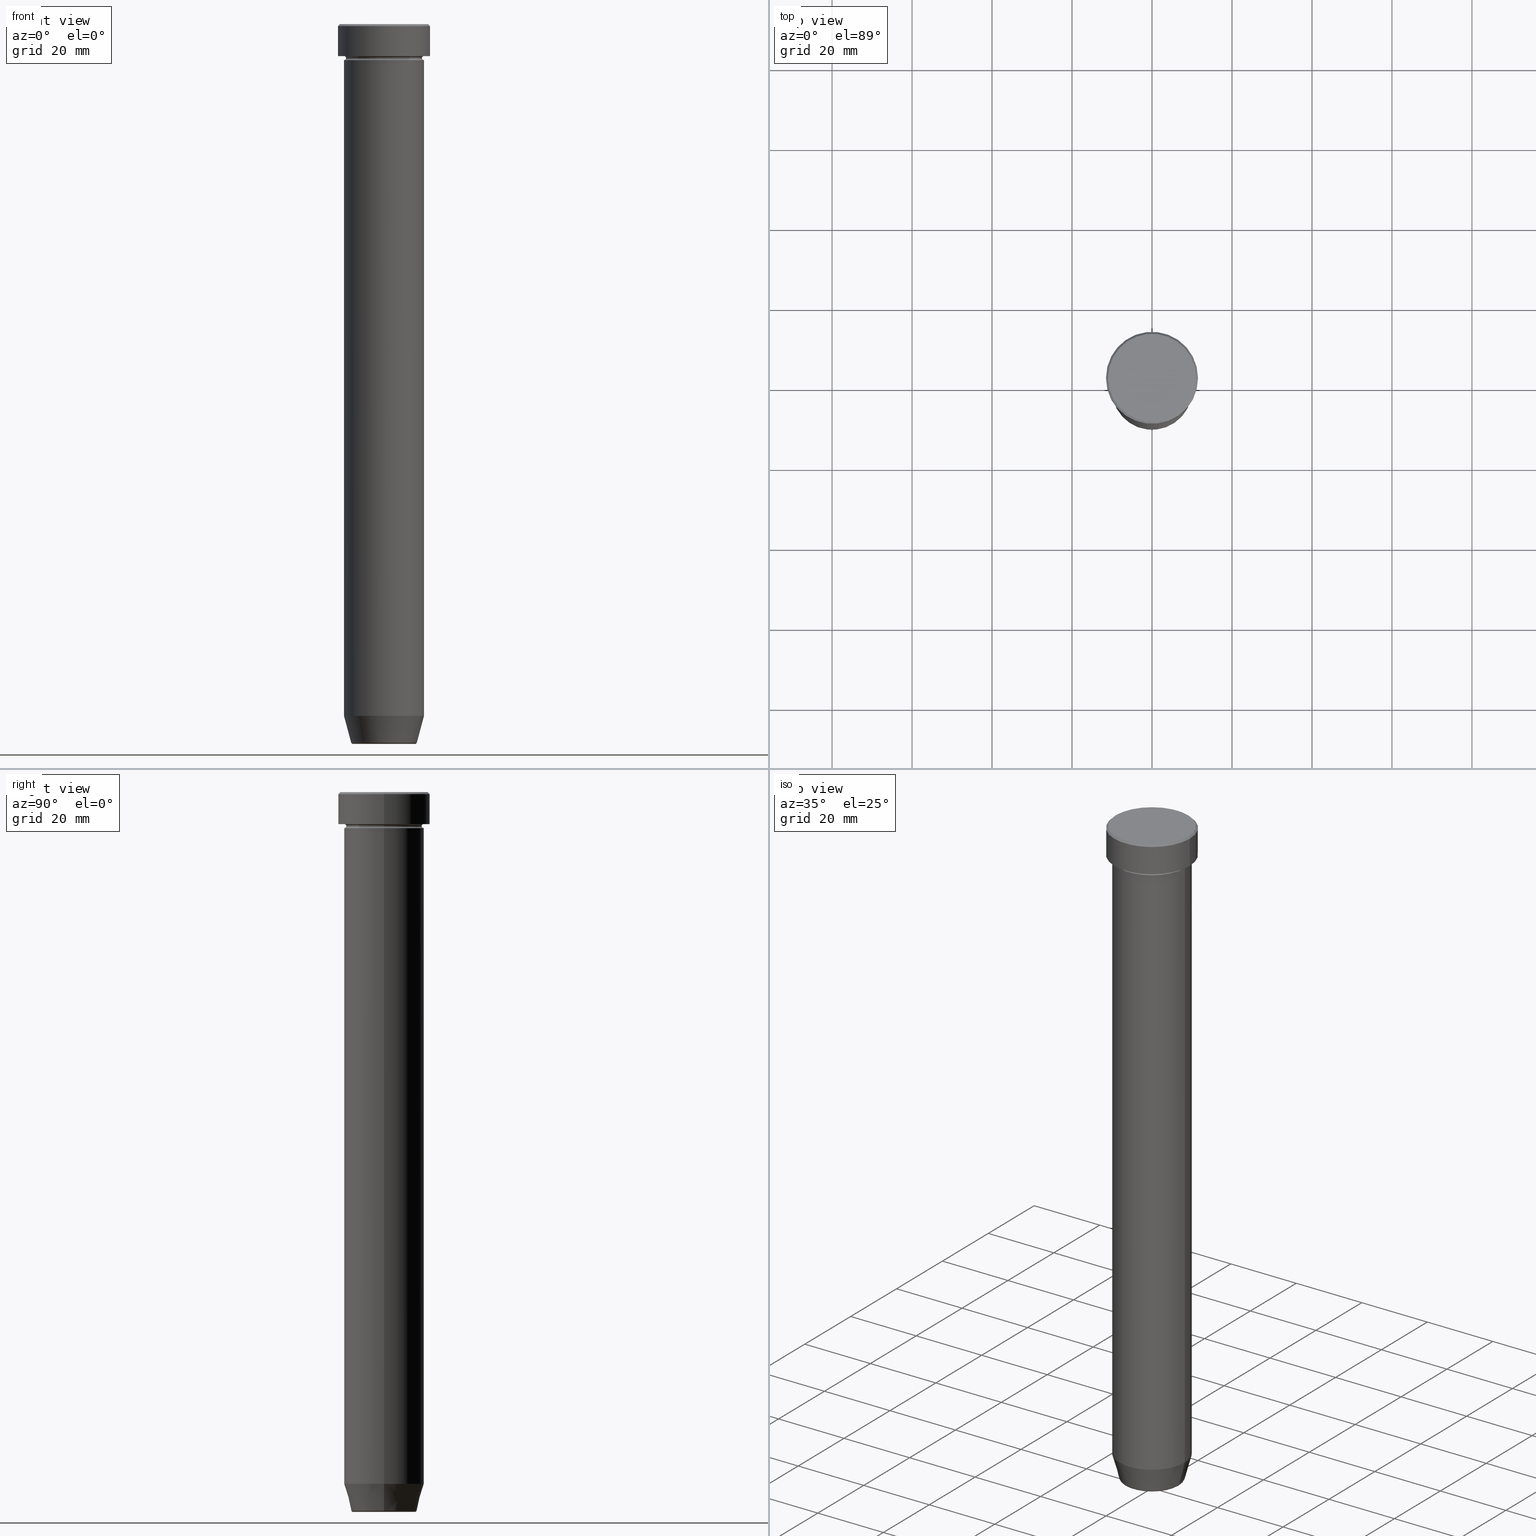
[diagram: canonical four-view strip — front | top / right | iso, engineering-drawing reading convention]
A machine part, canonical four-view strip (front | top / right | iso — engineering-drawing reading convention). The complete STEP part file that produces these views, byte-faithful:
ISO-10303-21;
HEADER;
FILE_DESCRIPTION (( 'STEP AP203' ),
    '1' );
FILE_NAME ('68f9.STEP',
    '2024-01-02T20:52:07',
    ( '' ),
    ( '' ),
    'SwSTEP 2.0',
    'SolidWorks 2019',
    '' );
FILE_SCHEMA (( 'CONFIG_CONTROL_DESIGN' ));
ENDSEC;

DATA;
#1 = APPROVAL_DATE_TIME ( #332, #492 ) ;
#2 = FACE_OUTER_BOUND ( 'NONE', #228, .T. ) ;
#3 = ORIENTED_EDGE ( 'NONE', *, *, #138, .F. ) ;
#4 = CARTESIAN_POINT ( 'NONE',  ( 0.000000000000000000, 0.000000000000000000, 0.000000000000000000 ) ) ;
#5 = AXIS2_PLACEMENT_3D ( 'NONE', #19, #436, #329 ) ;
#6 = AXIS2_PLACEMENT_3D ( 'NONE', #313, #272, #588 ) ;
#7 = EDGE_CURVE ( 'NONE', #514, #27, #581, .T. ) ;
#8 = AXIS2_PLACEMENT_3D ( 'NONE', #171, #82, #543 ) ;
#9 = ORIENTED_EDGE ( 'NONE', *, *, #330, .F. ) ;
#10 = ORIENTED_EDGE ( 'NONE', *, *, #472, .F. ) ;
#11 = ORIENTED_EDGE ( 'NONE', *, *, #184, .F. ) ;
#12 = EDGE_CURVE ( 'NONE', #281, #157, #83, .T. ) ;
#13 = LINE ( 'NONE', #388, #554 ) ;
#14 = CIRCLE ( 'NONE', #415, 10.00000000000000000 ) ;
#15 = ORIENTED_EDGE ( 'NONE', *, *, #524, .T. ) ;
#16 = LINE ( 'NONE', #58, #519 ) ;
#17 = ORIENTED_EDGE ( 'NONE', *, *, #387, .T. ) ;
#18 = SHAPE_DEFINITION_REPRESENTATION ( #487, #152 ) ;
#19 = CARTESIAN_POINT ( 'NONE',  ( 0.000000000000000000, 0.000000000000000000, 0.000000000000000000 ) ) ;
#20 = CYLINDRICAL_SURFACE ( 'NONE', #345, 9.999999999999998224 ) ;
#21 = TOROIDAL_SURFACE ( 'NONE', #395, 10.00000000000000000, 0.5000000000000000000 ) ;
#22 = EDGE_CURVE ( 'NONE', #314, #525, #61, .T. ) ;
#23 = TOROIDAL_SURFACE ( 'NONE', #582, 10.00000000000000000, 0.5000000000000000000 ) ;
#24 = CARTESIAN_POINT ( 'NONE',  ( 9.500000000000000000, 0.000000000000000000, -8.500000000000000000 ) ) ;
#25 = AXIS2_PLACEMENT_3D ( 'NONE', #444, #495, #79 ) ;
#26 = LINE ( 'NONE', #400, #508 ) ;
#27 = VERTEX_POINT ( 'NONE', #401 ) ;
#28 = CYLINDRICAL_SURFACE ( 'NONE', #545, 11.50000000000000000 ) ;
#29 = CARTESIAN_POINT ( 'NONE',  ( 0.000000000000000000, 0.000000000000000000, -173.0000000000000000 ) ) ;
#30 = ADVANCED_FACE ( 'NONE', ( #445 ), #21, .F. ) ;
#31 = FACE_OUTER_BOUND ( 'NONE', #522, .T. ) ;
#32 = DIRECTION ( 'NONE',  ( -1.000000000000000000, 0.000000000000000000, 0.000000000000000000 ) ) ;
#33 = CIRCLE ( 'NONE', #217, 9.999999999999998224 ) ;
#34 = AXIS2_PLACEMENT_3D ( 'NONE', #451, #365, #454 ) ;
#35 = CC_DESIGN_SECURITY_CLASSIFICATION ( #583, ( #563 ) ) ;
#36 = FACE_OUTER_BOUND ( 'NONE', #52, .T. ) ;
#37 = CARTESIAN_POINT ( 'NONE',  ( 0.000000000000000000, 0.000000000000000000, 0.000000000000000000 ) ) ;
#38 = CARTESIAN_POINT ( 'NONE',  ( 0.000000000000000000, 0.000000000000000000, -179.5000000000000000 ) ) ;
#39 = DIRECTION ( 'NONE',  ( 1.000000000000000000, 0.000000000000000000, 0.000000000000000000 ) ) ;
#40 = PERSON_AND_ORGANIZATION ( #507, #336 ) ;
#41 = DIRECTION ( 'NONE',  ( 0.000000000000000000, -0.000000000000000000, 1.000000000000000000 ) ) ;
#42 = EDGE_CURVE ( 'NONE', #43, #160, #33, .T. ) ;
#43 = VERTEX_POINT ( 'NONE', #249 ) ;
#44 = CONICAL_SURFACE ( 'NONE', #385, 11.00000000000000000, 0.7853981633974415066 ) ;
#45 = AXIS2_PLACEMENT_3D ( 'NONE', #366, #372, #230 ) ;
#46 = DIRECTION ( 'NONE',  ( -1.000000000000000000, 1.224646799147353454E-16, 0.000000000000000000 ) ) ;
#47 = COORDINATED_UNIVERSAL_TIME_OFFSET ( 1, 0, .AHEAD. ) ;
#48 = CARTESIAN_POINT ( 'NONE',  ( 0.000000000000000000, 0.000000000000000000, -8.500000000000000000 ) ) ;
#49 = ORIENTED_EDGE ( 'NONE', *, *, #499, .F. ) ;
#50 = DATE_AND_TIME ( #280, #397 ) ;
#51 = EDGE_CURVE ( 'NONE', #314, #371, #535, .T. ) ;
#52 = EDGE_LOOP ( 'NONE', ( #380, #305, #106, #215 ) ) ;
#53 = AXIS2_PLACEMENT_3D ( 'NONE', #502, #459, #87 ) ;
#54 = AXIS2_PLACEMENT_3D ( 'NONE', #312, #398, #216 ) ;
#55 = ORIENTED_EDGE ( 'NONE', *, *, #426, .T. ) ;
#56 = VERTEX_POINT ( 'NONE', #24 ) ;
#57 = DATE_AND_TIME ( #346, #125 ) ;
#58 = CARTESIAN_POINT ( 'NONE',  ( 11.50000000000000000, 0.000000000000000000, 0.000000000000000000 ) ) ;
#59 = EDGE_LOOP ( 'NONE', ( #384, #73 ) ) ;
#60 = DIRECTION ( 'NONE',  ( -0.000000000000000000, -0.000000000000000000, 1.000000000000000000 ) ) ;
#61 = CIRCLE ( 'NONE', #296, 11.50000000000000000 ) ;
#62 = CIRCLE ( 'NONE', #104, 9.999999999999998224 ) ;
#63 = AXIS2_PLACEMENT_3D ( 'NONE', #101, #590, #414 ) ;
#64 = DIRECTION ( 'NONE',  ( 1.000000000000000000, 0.000000000000000000, 0.000000000000000000 ) ) ;
#65 = CYLINDRICAL_SURFACE ( 'NONE', #179, 11.50000000000000000 ) ;
#66 = CARTESIAN_POINT ( 'NONE',  ( 0.000000000000000000, 0.000000000000000000, -180.0000000000000000 ) ) ;
#67 = EDGE_CURVE ( 'NONE', #160, #43, #62, .T. ) ;
#68 = DIRECTION ( 'NONE',  ( -1.000000000000000000, 0.000000000000000000, -0.000000000000000000 ) ) ;
#69 = CARTESIAN_POINT ( 'NONE',  ( 0.000000000000000000, 0.000000000000000000, 0.000000000000000000 ) ) ;
#70 = DIRECTION ( 'NONE',  ( 1.224646799147353207E-16, 1.000000000000000000, 0.000000000000000000 ) ) ;
#71 = AXIS2_PLACEMENT_3D ( 'NONE', #498, #135, #267 ) ;
#72 = MANIFOLD_SOLID_BREP ( 'Zkosen�1', #244 ) ;
#73 = ORIENTED_EDGE ( 'NONE', *, *, #533, .T. ) ;
#74 = AXIS2_PLACEMENT_3D ( 'NONE', #577, #126, #309 ) ;
#75 = DESIGN_CONTEXT ( 'detailed design', #448, 'design' ) ;
#76 = DIRECTION ( 'NONE',  ( -1.000000000000000000, 0.000000000000000000, 0.000000000000000000 ) ) ;
#77 = ORIENTED_EDGE ( 'NONE', *, *, #22, .T. ) ;
#78 = ADVANCED_FACE ( 'NONE', ( #433 ), #23, .F. ) ;
#79 = DIRECTION ( 'NONE',  ( -1.000000000000000000, 0.000000000000000000, -0.000000000000000000 ) ) ;
#80 = FACE_OUTER_BOUND ( 'NONE', #154, .T. ) ;
#81 = CC_DESIGN_PERSON_AND_ORGANIZATION_ASSIGNMENT ( #40, #337, ( #563 ) ) ;
#82 = DIRECTION ( 'NONE',  ( -0.000000000000000000, -0.000000000000000000, 1.000000000000000000 ) ) ;
#83 = CIRCLE ( 'NONE', #553, 7.740692158992655614 ) ;
#84 = CARTESIAN_POINT ( 'NONE',  ( 0.000000000000000000, 11.50000000000000000, -8.000000000000000000 ) ) ;
#85 = CIRCLE ( 'NONE', #114, 0.5000000000000004441 ) ;
#86 = CARTESIAN_POINT ( 'NONE',  ( -10.00000000000000000, 1.224646799147353256E-15, -22.00000000000000000 ) ) ;
#87 = DIRECTION ( 'NONE',  ( 1.000000000000000000, 0.000000000000000000, 0.000000000000000000 ) ) ;
#88 = COORDINATED_UNIVERSAL_TIME_OFFSET ( 1, 0, .AHEAD. ) ;
#89 = ADVANCED_FACE ( 'NONE', ( #121 ), #540, .T. ) ;
#90 = FACE_OUTER_BOUND ( 'NONE', #382, .T. ) ;
#91 =( NAMED_UNIT ( * ) PLANE_ANGLE_UNIT ( ) SI_UNIT ( $, .RADIAN. ) );
#92 = DIRECTION ( 'NONE',  ( -0.000000000000000000, -0.000000000000000000, 1.000000000000000000 ) ) ;
#93 = CIRCLE ( 'NONE', #431, 10.00000000000000000 ) ;
#94 = APPROVAL_STATUS ( 'not_yet_approved' ) ;
#95 = CIRCLE ( 'NONE', #150, 11.00000000000000000 ) ;
#96 = CARTESIAN_POINT ( 'NONE',  ( -11.50000000000000000, 1.408343819019456176E-15, -0.5000000000000073275 ) ) ;
#97 = EDGE_CURVE ( 'NONE', #525, #314, #266, .T. ) ;
#98 = ORIENTED_EDGE ( 'NONE', *, *, #402, .T. ) ;
#99 = APPROVAL_STATUS ( 'not_yet_approved' ) ;
#100 = ORIENTED_EDGE ( 'NONE', *, *, #7, .F. ) ;
#101 = CARTESIAN_POINT ( 'NONE',  ( 0.000000000000000000, 0.000000000000000000, -9.000000000000001776 ) ) ;
#102 = ORIENTED_EDGE ( 'NONE', *, *, #227, .F. ) ;
#103 = APPROVAL_ROLE ( '' ) ;
#104 = AXIS2_PLACEMENT_3D ( 'NONE', #164, #399, #353 ) ;
#105 = CIRCLE ( 'NONE', #268, 7.740692158992655614 ) ;
#106 = ORIENTED_EDGE ( 'NONE', *, *, #264, .T. ) ;
#107 = PERSON_AND_ORGANIZATION ( #507, #336 ) ;
#108 = CARTESIAN_POINT ( 'NONE',  ( 0.000000000000000000, 0.000000000000000000, 0.000000000000000000 ) ) ;
#109 = PRODUCT_DEFINITION ( 'NEZN�M�', '', #563, #75 ) ;
#110 = ORIENTED_EDGE ( 'NONE', *, *, #133, .F. ) ;
#111 = CARTESIAN_POINT ( 'NONE',  ( -10.00000000000000000, 1.224646799147353256E-15, 0.000000000000000000 ) ) ;
#112 = VERTEX_POINT ( 'NONE', #178 ) ;
#113 = PLANE ( 'NONE',  #440 ) ;
#114 = AXIS2_PLACEMENT_3D ( 'NONE', #408, #506, #46 ) ;
#115 = APPROVAL_PERSON_ORGANIZATION ( #328, #361, #455 ) ;
#116 = DIRECTION ( 'NONE',  ( -0.000000000000000000, -0.000000000000000000, 1.000000000000000000 ) ) ;
#117 = EDGE_CURVE ( 'NONE', #383, #516, #593, .T. ) ;
#118 = CARTESIAN_POINT ( 'NONE',  ( 0.000000000000000000, 0.000000000000000000, -8.500000000000000000 ) ) ;
#119 = ORIENTED_EDGE ( 'NONE', *, *, #322, .T. ) ;
#120 = CARTESIAN_POINT ( 'NONE',  ( -10.00000000000000000, 0.000000000000000000, -8.500000000000000000 ) ) ;
#121 = FACE_OUTER_BOUND ( 'NONE', #276, .T. ) ;
#122 = FACE_OUTER_BOUND ( 'NONE', #59, .T. ) ;
#123 = EDGE_CURVE ( 'NONE', #56, #199, #379, .T. ) ;
#124 = CARTESIAN_POINT ( 'NONE',  ( 0.000000000000000000, 0.000000000000000000, -8.500000000000000000 ) ) ;
#125 = LOCAL_TIME ( 21, 52, 7.000000000000000000, #203 ) ;
#126 = DIRECTION ( 'NONE',  ( -0.000000000000000000, -0.000000000000000000, 1.000000000000000000 ) ) ;
#127 = DIRECTION ( 'NONE',  ( -0.000000000000000000, -0.000000000000000000, 1.000000000000000000 ) ) ;
#128 = DIRECTION ( 'NONE',  ( -0.000000000000000000, -0.000000000000000000, 1.000000000000000000 ) ) ;
#129 = FACE_BOUND ( 'NONE', #578, .T. ) ;
#130 = DIRECTION ( 'NONE',  ( 1.000000000000000000, 0.000000000000000000, 0.000000000000000000 ) ) ;
#131 = DIRECTION ( 'NONE',  ( -0.000000000000000000, -0.000000000000000000, 1.000000000000000000 ) ) ;
#132 = TOROIDAL_SURFACE ( 'NONE', #335, 10.00000000000000000, 0.5000000000000000000 ) ;
#133 = EDGE_CURVE ( 'NONE', #308, #112, #196, .T. ) ;
#134 = CALENDAR_DATE ( 2024, 2, 1 ) ;
#135 = DIRECTION ( 'NONE',  ( -0.000000000000000000, -0.000000000000000000, 1.000000000000000000 ) ) ;
#136 = DIRECTION ( 'NONE',  ( 1.000000000000000000, 0.000000000000000000, 0.000000000000000000 ) ) ;
#137 = ORIENTED_EDGE ( 'NONE', *, *, #12, .F. ) ;
#138 = EDGE_CURVE ( 'NONE', #549, #371, #528, .T. ) ;
#139 = CARTESIAN_POINT ( 'NONE',  ( 0.000000000000000000, 0.000000000000000000, -9.000000000000001776 ) ) ;
#140 = ORIENTED_EDGE ( 'NONE', *, *, #184, .T. ) ;
#141 = TOROIDAL_SURFACE ( 'NONE', #168, 7.740692158992655614, 0.5000000000000000000 ) ;
#142 = DATE_AND_TIME ( #271, #347 ) ;
#143 = DIRECTION ( 'NONE',  ( 0.2588190451025214611, 0.000000000000000000, 0.9659258262890679791 ) ) ;
#144 = ORIENTED_EDGE ( 'NONE', *, *, #369, .F. ) ;
#145 = PERSON_AND_ORGANIZATION ( #507, #336 ) ;
#146 = ORIENTED_EDGE ( 'NONE', *, *, #576, .F. ) ;
#147 = EDGE_LOOP ( 'NONE', ( #580, #294 ) ) ;
#148 = ADVANCED_FACE ( 'NONE', ( #218 ), #396, .T. ) ;
#149 = AXIS2_PLACEMENT_3D ( 'NONE', #320, #591, #263 ) ;
#150 = AXIS2_PLACEMENT_3D ( 'NONE', #558, #512, #550 ) ;
#151 = EDGE_LOOP ( 'NONE', ( #55, #404, #561, #473 ) ) ;
#152 = ADVANCED_BREP_SHAPE_REPRESENTATION ( '68f9', ( #72, #373, #407 ), #555 ) ;
#153 = DIRECTION ( 'NONE',  ( 1.000000000000000000, 0.000000000000000000, 0.000000000000000000 ) ) ;
#154 = EDGE_LOOP ( 'NONE', ( #239, #15, #567, #146 ) ) ;
#155 = DIRECTION ( 'NONE',  ( 0.000000000000000000, 0.000000000000000000, -1.000000000000000000 ) ) ;
#156 = ADVANCED_FACE ( 'NONE', ( #223 ), #132, .F. ) ;
#157 = VERTEX_POINT ( 'NONE', #548 ) ;
#158 = DIRECTION ( 'NONE',  ( -0.000000000000000000, -0.000000000000000000, 1.000000000000000000 ) ) ;
#159 = AXIS2_PLACEMENT_3D ( 'NONE', #48, #155, #325 ) ;
#160 = VERTEX_POINT ( 'NONE', #175 ) ;
#161 = CARTESIAN_POINT ( 'NONE',  ( 11.50000000000000000, 0.000000000000000000, -0.5000000000000073275 ) ) ;
#162 = DIRECTION ( 'NONE',  ( -0.000000000000000000, -0.000000000000000000, 1.000000000000000000 ) ) ;
#163 = DIRECTION ( 'NONE',  ( -0.000000000000000000, -0.000000000000000000, 1.000000000000000000 ) ) ;
#164 = CARTESIAN_POINT ( 'NONE',  ( 0.000000000000000000, 0.000000000000000000, -173.0000000000000000 ) ) ;
#165 = ADVANCED_FACE ( 'NONE', ( #129, #221 ), #370, .T. ) ;
#166 = LINE ( 'NONE', #537, #246 ) ;
#167 = CLOSED_SHELL ( 'NONE', ( #585, #518, #258, #453, #238, #541, #290, #393 ) ) ;
#168 = AXIS2_PLACEMENT_3D ( 'NONE', #38, #491, #174 ) ;
#169 = DIRECTION ( 'NONE',  ( 1.000000000000000000, 0.000000000000000000, 0.000000000000000000 ) ) ;
#170 = AXIS2_PLACEMENT_3D ( 'NONE', #452, #442, #574 ) ;
#171 = CARTESIAN_POINT ( 'NONE',  ( 0.000000000000000000, 0.000000000000000000, -22.00000000000000000 ) ) ;
#172 = CARTESIAN_POINT ( 'NONE',  ( 0.000000000000000000, 0.000000000000000000, -22.00000000000000000 ) ) ;
#173 = EDGE_LOOP ( 'NONE', ( #552, #279, #259, #575 ) ) ;
#174 = DIRECTION ( 'NONE',  ( 1.000000000000000000, 0.000000000000000000, 0.000000000000000000 ) ) ;
#175 = CARTESIAN_POINT ( 'NONE',  ( 9.999999999999998224, 0.000000000000000000, -173.0000000000000000 ) ) ;
#176 = EDGE_CURVE ( 'NONE', #202, #339, #406, .T. ) ;
#177 = FACE_OUTER_BOUND ( 'NONE', #240, .T. ) ;
#178 = CARTESIAN_POINT ( 'NONE',  ( 8.223655072137189492, 0.000000000000000000, -179.6294095225512422 ) ) ;
#179 = AXIS2_PLACEMENT_3D ( 'NONE', #570, #60, #289 ) ;
#180 = ORIENTED_EDGE ( 'NONE', *, *, #598, .F. ) ;
#181 = CIRCLE ( 'NONE', #469, 11.50000000000000000 ) ;
#182 = DIRECTION ( 'NONE',  ( 0.000000000000000000, 0.000000000000000000, -1.000000000000000000 ) ) ;
#183 = DIRECTION ( 'NONE',  ( 0.000000000000000000, 0.000000000000000000, -1.000000000000000000 ) ) ;
#184 = EDGE_CURVE ( 'NONE', #300, #538, #85, .T. ) ;
#185 = DIRECTION ( 'NONE',  ( 1.000000000000000000, 0.000000000000000000, 0.000000000000000000 ) ) ;
#186 = PERSON_AND_ORGANIZATION ( #507, #336 ) ;
#187 = CARTESIAN_POINT ( 'NONE',  ( 8.124355652982131915, 0.000000000000000000, -180.0000000000000000 ) ) ;
#188 = ORIENTED_EDGE ( 'NONE', *, *, #264, .F. ) ;
#189 = VECTOR ( 'NONE', #439, 1000.000000000000000 ) ;
#190 =( NAMED_UNIT ( * ) SI_UNIT ( $, .STERADIAN. ) SOLID_ANGLE_UNIT ( ) );
#191 = CIRCLE ( 'NONE', #54, 0.5000000000000004441 ) ;
#192 = ORIENTED_EDGE ( 'NONE', *, *, #598, .T. ) ;
#193 = ADVANCED_FACE ( 'NONE', ( #80 ), #412, .T. ) ;
#194 = ORIENTED_EDGE ( 'NONE', *, *, #97, .T. ) ;
#195 = ORIENTED_EDGE ( 'NONE', *, *, #559, .F. ) ;
#196 = CIRCLE ( 'NONE', #6, 8.223655072137189492 ) ;
#197 = DIRECTION ( 'NONE',  ( -0.000000000000000000, -0.000000000000000000, 1.000000000000000000 ) ) ;
#198 = CONICAL_SURFACE ( 'NONE', #257, 8.124355652982131915, 0.2617993877991502405 ) ;
#199 = VERTEX_POINT ( 'NONE', #586 ) ;
#200 = ADVANCED_FACE ( 'NONE', ( #90 ), #546, .T. ) ;
#201 = DIRECTION ( 'NONE',  ( -0.000000000000000000, -0.000000000000000000, 1.000000000000000000 ) ) ;
#202 = VERTEX_POINT ( 'NONE', #417 ) ;
#203 = COORDINATED_UNIVERSAL_TIME_OFFSET ( 1, 0, .AHEAD. ) ;
#204 = DIRECTION ( 'NONE',  ( 1.000000000000000000, 0.000000000000000000, 0.000000000000000000 ) ) ;
#205 = CARTESIAN_POINT ( 'NONE',  ( 0.000000000000000000, 0.000000000000000000, -8.500000000000000000 ) ) ;
#206 = LINE ( 'NONE', #523, #468 ) ;
#207 = AXIS2_PLACEMENT_3D ( 'NONE', #172, #447, #270 ) ;
#208 = CONICAL_SURFACE ( 'NONE', #416, 8.124355652982131915, 0.2617993877991502405 ) ;
#209 = APPLICATION_CONTEXT ( 'configuration controlled 3d designs of mechanical parts and assemblies' ) ;
#210 = ORIENTED_EDGE ( 'NONE', *, *, #358, .F. ) ;
#211 = DIRECTION ( 'NONE',  ( -0.000000000000000000, -1.000000000000000000, -0.000000000000000000 ) ) ;
#212 = CARTESIAN_POINT ( 'NONE',  ( -11.50000000000000000, 1.408343819019456176E-15, 0.000000000000000000 ) ) ;
#213 = CC_DESIGN_PERSON_AND_ORGANIZATION_ASSIGNMENT ( #145, #503, ( #471 ) ) ;
#214 = CARTESIAN_POINT ( 'NONE',  ( 0.000000000000000000, 0.000000000000000000, -180.0000000000000000 ) ) ;
#215 = ORIENTED_EDGE ( 'NONE', *, *, #42, .F. ) ;
#216 = DIRECTION ( 'NONE',  ( 0.000000000000000000, 0.000000000000000000, -1.000000000000000000 ) ) ;
#217 = AXIS2_PLACEMENT_3D ( 'NONE', #29, #162, #64 ) ;
#218 = FACE_OUTER_BOUND ( 'NONE', #422, .T. ) ;
#219 = DIRECTION ( 'NONE',  ( -0.000000000000000000, -0.000000000000000000, 1.000000000000000000 ) ) ;
#220 = EDGE_CURVE ( 'NONE', #344, #199, #14, .T. ) ;
#221 = FACE_OUTER_BOUND ( 'NONE', #291, .T. ) ;
#222 = CARTESIAN_POINT ( 'NONE',  ( 10.00000000000000000, 0.000000000000000000, -8.500000000000000000 ) ) ;
#223 = FACE_OUTER_BOUND ( 'NONE', #520, .T. ) ;
#224 =( LENGTH_UNIT ( ) NAMED_UNIT ( * ) SI_UNIT ( .MILLI., .METRE. ) );
#225 = CARTESIAN_POINT ( 'NONE',  ( 0.000000000000000000, 0.000000000000000000, 0.000000000000000000 ) ) ;
#226 = AXIS2_PLACEMENT_3D ( 'NONE', #225, #92, #136 ) ;
#227 = EDGE_CURVE ( 'NONE', #43, #516, #599, .T. ) ;
#228 = EDGE_LOOP ( 'NONE', ( #461, #425 ) ) ;
#229 = APPROVAL_PERSON_ORGANIZATION ( #594, #492, #277 ) ;
#230 = DIRECTION ( 'NONE',  ( 1.000000000000000000, 0.000000000000000000, 0.000000000000000000 ) ) ;
#231 = CARTESIAN_POINT ( 'NONE',  ( 0.000000000000000000, 0.000000000000000000, -8.000000000000000000 ) ) ;
#232 = ORIENTED_EDGE ( 'NONE', *, *, #402, .F. ) ;
#233 = FACE_OUTER_BOUND ( 'NONE', #151, .T. ) ;
#234 = ORIENTED_EDGE ( 'NONE', *, *, #435, .F. ) ;
#235 = DIRECTION ( 'NONE',  ( 1.000000000000000000, 0.000000000000000000, 0.000000000000000000 ) ) ;
#236 = ORIENTED_EDGE ( 'NONE', *, *, #413, .T. ) ;
#237 = AXIS2_PLACEMENT_3D ( 'NONE', #37, #323, #32 ) ;
#238 = ADVANCED_FACE ( 'NONE', ( #496 ), #478, .T. ) ;
#239 = ORIENTED_EDGE ( 'NONE', *, *, #322, .F. ) ;
#240 = EDGE_LOOP ( 'NONE', ( #137, #476, #234, #443 ) ) ;
#241 = DIRECTION ( 'NONE',  ( -0.000000000000000000, -0.000000000000000000, 1.000000000000000000 ) ) ;
#242 = EDGE_LOOP ( 'NONE', ( #194, #350, #363, #210 ) ) ;
#243 = ADVANCED_FACE ( 'NONE', ( #233 ), #489, .F. ) ;
#244 = CLOSED_SHELL ( 'NONE', ( #283, #243, #78, #89, #460, #311, #200, #351, #165, #193, #156, #30, #148 ) ) ;
#245 = PERSON_AND_ORGANIZATION_ROLE ( 'design_supplier' ) ;
#246 = VECTOR ( 'NONE', #534, 1000.000000000000114 ) ;
#247 = CARTESIAN_POINT ( 'NONE',  ( -7.740692158992655614, 9.775343368540039135E-16, -180.0000000000000000 ) ) ;
#248 = AXIS2_PLACEMENT_3D ( 'NONE', #222, #321, #182 ) ;
#249 = CARTESIAN_POINT ( 'NONE',  ( -9.999999999999998224, 1.224646799147353059E-15, -173.0000000000000000 ) ) ;
#250 = PERSON_AND_ORGANIZATION ( #507, #336 ) ;
#251 = CARTESIAN_POINT ( 'NONE',  ( -10.00000000000000000, 0.000000000000000000, -8.000000000000000000 ) ) ;
#252 = CARTESIAN_POINT ( 'NONE',  ( 0.000000000000000000, 0.000000000000000000, -8.000000000000000000 ) ) ;
#253 = DIRECTION ( 'NONE',  ( 1.000000000000000000, 0.000000000000000000, 0.000000000000000000 ) ) ;
#254 = DIRECTION ( 'NONE',  ( 0.000000000000000000, 0.000000000000000000, -1.000000000000000000 ) ) ;
#255 = CARTESIAN_POINT ( 'NONE',  ( -11.00000000000000000, 0.000000000000000000, 0.000000000000000000 ) ) ;
#256 = VECTOR ( 'NONE', #127, 1000.000000000000000 ) ;
#257 = AXIS2_PLACEMENT_3D ( 'NONE', #354, #219, #130 ) ;
#258 = ADVANCED_FACE ( 'NONE', ( #568 ), #20, .T. ) ;
#259 = ORIENTED_EDGE ( 'NONE', *, *, #420, .T. ) ;
#260 = DIRECTION ( 'NONE',  ( -0.000000000000000000, -0.000000000000000000, 1.000000000000000000 ) ) ;
#261 = ORIENTED_EDGE ( 'NONE', *, *, #533, .F. ) ;
#262 = DIRECTION ( 'NONE',  ( 0.000000000000000000, 0.000000000000000000, -1.000000000000000000 ) ) ;
#263 = DIRECTION ( 'NONE',  ( 1.000000000000000000, 0.000000000000000000, 0.000000000000000000 ) ) ;
#264 = EDGE_CURVE ( 'NONE', #112, #160, #341, .T. ) ;
#265 = CARTESIAN_POINT ( 'NONE',  ( 11.50000000000000000, 0.000000000000000000, -8.000000000000000000 ) ) ;
#266 = CIRCLE ( 'NONE', #71, 11.50000000000000000 ) ;
#267 = DIRECTION ( 'NONE',  ( 1.000000000000000000, 0.000000000000000000, 0.000000000000000000 ) ) ;
#268 = AXIS2_PLACEMENT_3D ( 'NONE', #214, #262, #409 ) ;
#269 = FACE_OUTER_BOUND ( 'NONE', #511, .T. ) ;
#270 = DIRECTION ( 'NONE',  ( 1.000000000000000000, 0.000000000000000000, 0.000000000000000000 ) ) ;
#271 = CALENDAR_DATE ( 2024, 2, 1 ) ;
#272 = DIRECTION ( 'NONE',  ( -0.000000000000000000, -0.000000000000000000, 1.000000000000000000 ) ) ;
#273 = DIRECTION ( 'NONE',  ( 1.000000000000000000, 0.000000000000000000, 0.000000000000000000 ) ) ;
#274 = CC_DESIGN_PERSON_AND_ORGANIZATION_ASSIGNMENT ( #186, #282, ( #109 ) ) ;
#275 = AXIS2_PLACEMENT_3D ( 'NONE', #118, #201, #253 ) ;
#276 = EDGE_LOOP ( 'NONE', ( #466, #119, #389, #195 ) ) ;
#277 = APPROVAL_ROLE ( '' ) ;
#278 = DIRECTION ( 'NONE',  ( -1.000000000000000000, 0.000000000000000000, 0.000000000000000000 ) ) ;
#279 = ORIENTED_EDGE ( 'NONE', *, *, #369, .T. ) ;
#280 = CALENDAR_DATE ( 2024, 2, 1 ) ;
#281 = VERTEX_POINT ( 'NONE', #247 ) ;
#282 = PERSON_AND_ORGANIZATION_ROLE ( 'creator' ) ;
#283 = ADVANCED_FACE ( 'NONE', ( #348 ), #44, .T. ) ;
#284 = AXIS2_PLACEMENT_3D ( 'NONE', #69, #116, #355 ) ;
#285 = ORIENTED_EDGE ( 'NONE', *, *, #117, .F. ) ;
#286 = CIRCLE ( 'NONE', #317, 8.223655072137189492 ) ;
#287 = ORIENTED_EDGE ( 'NONE', *, *, #138, .T. ) ;
#288 = DATE_AND_TIME ( #517, #386 ) ;
#289 = DIRECTION ( 'NONE',  ( 1.000000000000000000, 0.000000000000000000, 0.000000000000000000 ) ) ;
#290 = ADVANCED_FACE ( 'NONE', ( #378 ), #113, .F. ) ;
#291 = EDGE_LOOP ( 'NONE', ( #483, #342 ) ) ;
#292 = PERSON_AND_ORGANIZATION_ROLE ( 'classification_officer' ) ;
#293 = CARTESIAN_POINT ( 'NONE',  ( -10.00000000000000000, 1.224646799147353256E-15, -22.00000000000000000 ) ) ;
#294 = ORIENTED_EDGE ( 'NONE', *, *, #12, .T. ) ;
#295 = CC_DESIGN_PERSON_AND_ORGANIZATION_ASSIGNMENT ( #434, #292, ( #583 ) ) ;
#296 = AXIS2_PLACEMENT_3D ( 'NONE', #252, #479, #437 ) ;
#297 = AXIS2_PLACEMENT_3D ( 'NONE', #120, #211, #497 ) ;
#298 = CARTESIAN_POINT ( 'NONE',  ( -8.223655072137189492, 1.115877042642911856E-15, -179.6294095225512422 ) ) ;
#299 = CC_DESIGN_APPROVAL ( #492, ( #109 ) ) ;
#300 = VERTEX_POINT ( 'NONE', #475 ) ;
#301 = CARTESIAN_POINT ( 'NONE',  ( 0.000000000000000000, 10.00000000000000000, -22.00000000000000000 ) ) ;
#302 = ORIENTED_EDGE ( 'NONE', *, *, #481, .F. ) ;
#303 = EDGE_CURVE ( 'NONE', #485, #538, #571, .T. ) ;
#304 = FACE_OUTER_BOUND ( 'NONE', #242, .T. ) ;
#305 = ORIENTED_EDGE ( 'NONE', *, *, #133, .T. ) ;
#306 = CIRCLE ( 'NONE', #275, 9.500000000000000000 ) ;
#307 = CIRCLE ( 'NONE', #74, 9.500000000000000000 ) ;
#308 = VERTEX_POINT ( 'NONE', #298 ) ;
#309 = DIRECTION ( 'NONE',  ( 1.000000000000000000, 0.000000000000000000, 0.000000000000000000 ) ) ;
#310 = DIRECTION ( 'NONE',  ( -0.000000000000000000, -0.000000000000000000, 1.000000000000000000 ) ) ;
#311 = ADVANCED_FACE ( 'NONE', ( #2 ), #551, .T. ) ;
#312 = CARTESIAN_POINT ( 'NONE',  ( 7.740692158992655614, 0.000000000000000000, -179.5000000000000000 ) ) ;
#313 = CARTESIAN_POINT ( 'NONE',  ( 0.000000000000000000, 0.000000000000000000, -179.6294095225512422 ) ) ;
#314 = VERTEX_POINT ( 'NONE', #510 ) ;
#315 = LINE ( 'NONE', #462, #501 ) ;
#316 = VECTOR ( 'NONE', #530, 1000.000000000000000 ) ;
#317 = AXIS2_PLACEMENT_3D ( 'NONE', #356, #260, #76 ) ;
#318 = DIRECTION ( 'NONE',  ( 1.000000000000000000, 0.000000000000000000, 0.000000000000000000 ) ) ;
#319 = COORDINATED_UNIVERSAL_TIME_OFFSET ( 1, 0, .AHEAD. ) ;
#320 = CARTESIAN_POINT ( 'NONE',  ( 0.000000000000000000, 0.000000000000000000, 0.000000000000000000 ) ) ;
#321 = DIRECTION ( 'NONE',  ( 0.000000000000000000, -1.000000000000000000, 0.000000000000000000 ) ) ;
#322 = EDGE_CURVE ( 'NONE', #339, #538, #556, .T. ) ;
#323 = DIRECTION ( 'NONE',  ( 0.000000000000000000, 0.000000000000000000, -1.000000000000000000 ) ) ;
#324 = MECHANICAL_CONTEXT ( 'NONE', #209, 'mechanical' ) ;
#325 = DIRECTION ( 'NONE',  ( -1.000000000000000000, 0.000000000000000000, 0.000000000000000000 ) ) ;
#326 = AXIS2_PLACEMENT_3D ( 'NONE', #362, #183, #318 ) ;
#327 = LOCAL_TIME ( 21, 52, 7.000000000000000000, #47 ) ;
#328 = PERSON_AND_ORGANIZATION ( #507, #336 ) ;
#329 = DIRECTION ( 'NONE',  ( 1.000000000000000000, 0.000000000000000000, 0.000000000000000000 ) ) ;
#330 = EDGE_CURVE ( 'NONE', #27, #549, #206, .T. ) ;
#331 = ORIENTED_EDGE ( 'NONE', *, *, #51, .F. ) ;
#332 = DATE_AND_TIME ( #134, #327 ) ;
#333 = EDGE_LOOP ( 'NONE', ( #331, #77, #488, #287 ) ) ;
#334 = ORIENTED_EDGE ( 'NONE', *, *, #426, .F. ) ;
#335 = AXIS2_PLACEMENT_3D ( 'NONE', #544, #131, #273 ) ;
#336 = ORGANIZATION ( 'NEUR�EN�', 'NEUR�EN�', '' ) ;
#337 = PERSON_AND_ORGANIZATION_ROLE ( 'creator' ) ;
#338 = CC_DESIGN_DATE_AND_TIME_ASSIGNMENT ( #142, #467, ( #109 ) ) ;
#339 = VERTEX_POINT ( 'NONE', #293 ) ;
#340 = SECURITY_CLASSIFICATION_LEVEL ( 'unclassified' ) ;
#341 = LINE ( 'NONE', #187, #562 ) ;
#342 = ORIENTED_EDGE ( 'NONE', *, *, #22, .F. ) ;
#343 = CARTESIAN_POINT ( 'NONE',  ( 0.000000000000000000, 0.000000000000000000, 0.000000000000000000 ) ) ;
#344 = VERTEX_POINT ( 'NONE', #251 ) ;
#345 = AXIS2_PLACEMENT_3D ( 'NONE', #108, #566, #153 ) ;
#346 = CALENDAR_DATE ( 2024, 2, 1 ) ;
#347 = LOCAL_TIME ( 21, 52, 7.000000000000000000, #319 ) ;
#348 = FACE_OUTER_BOUND ( 'NONE', #527, .T. ) ;
#349 = CIRCLE ( 'NONE', #490, 0.4999999999999995559 ) ;
#350 = ORIENTED_EDGE ( 'NONE', *, *, #51, .T. ) ;
#351 = ADVANCED_FACE ( 'NONE', ( #432 ), #65, .T. ) ;
#352 = CARTESIAN_POINT ( 'NONE',  ( -7.740692158992655614, 9.479613875695369764E-16, -179.5000000000000000 ) ) ;
#353 = DIRECTION ( 'NONE',  ( 1.000000000000000000, 0.000000000000000000, 0.000000000000000000 ) ) ;
#354 = CARTESIAN_POINT ( 'NONE',  ( 0.000000000000000000, 0.000000000000000000, -180.0000000000000000 ) ) ;
#355 = DIRECTION ( 'NONE',  ( 1.000000000000000000, 0.000000000000000000, 0.000000000000000000 ) ) ;
#356 = CARTESIAN_POINT ( 'NONE',  ( 0.000000000000000000, 0.000000000000000000, -179.6294095225512422 ) ) ;
#357 = AXIS2_PLACEMENT_3D ( 'NONE', #84, #410, #504 ) ;
#358 = EDGE_CURVE ( 'NONE', #525, #549, #16, .T. ) ;
#359 = EDGE_LOOP ( 'NONE', ( #597, #564, #285, #418 ) ) ;
#360 = PLANE ( 'NONE',  #25 ) ;
#361 = APPROVAL ( #99, 'NEUR�EN�' ) ;
#362 = CARTESIAN_POINT ( 'NONE',  ( 0.000000000000000000, 0.000000000000000000, -0.5000000000000073275 ) ) ;
#363 = ORIENTED_EDGE ( 'NONE', *, *, #481, .T. ) ;
#364 = DIRECTION ( 'NONE',  ( 1.000000000000000000, 0.000000000000000000, 0.000000000000000000 ) ) ;
#365 = DIRECTION ( 'NONE',  ( -1.224646799147353207E-16, 1.000000000000000000, 0.000000000000000000 ) ) ;
#366 = CARTESIAN_POINT ( 'NONE',  ( 0.000000000000000000, 0.000000000000000000, -179.5000000000000000 ) ) ;
#367 = AXIS2_PLACEMENT_3D ( 'NONE', #456, #41, #185 ) ;
#368 = CIRCLE ( 'NONE', #170, 10.00000000000000000 ) ;
#369 = EDGE_CURVE ( 'NONE', #56, #300, #306, .T. ) ;
#370 = PLANE ( 'NONE',  #357 ) ;
#371 = VERTEX_POINT ( 'NONE', #96 ) ;
#372 = DIRECTION ( 'NONE',  ( -0.000000000000000000, -0.000000000000000000, 1.000000000000000000 ) ) ;
#373 = MANIFOLD_SOLID_BREP ( 'Zaoblit4', #167 ) ;
#374 = CARTESIAN_POINT ( 'NONE',  ( -9.999999999999998224, 1.224646799147353059E-15, 0.000000000000000000 ) ) ;
#375 = ORIENTED_EDGE ( 'NONE', *, *, #303, .T. ) ;
#376 = DIRECTION ( 'NONE',  ( -0.000000000000000000, -0.000000000000000000, 1.000000000000000000 ) ) ;
#377 = EDGE_CURVE ( 'NONE', #199, #344, #93, .T. ) ;
#378 = FACE_OUTER_BOUND ( 'NONE', #147, .T. ) ;
#379 = CIRCLE ( 'NONE', #34, 0.5000000000000004441 ) ;
#380 = ORIENTED_EDGE ( 'NONE', *, *, #413, .F. ) ;
#381 = PRODUCT_RELATED_PRODUCT_CATEGORY ( 'detail', '', ( #471 ) ) ;
#382 = EDGE_LOOP ( 'NONE', ( #430, #572 ) ) ;
#383 = VERTEX_POINT ( 'NONE', #463 ) ;
#384 = ORIENTED_EDGE ( 'NONE', *, *, #117, .T. ) ;
#385 = AXIS2_PLACEMENT_3D ( 'NONE', #343, #438, #526 ) ;
#386 = LOCAL_TIME ( 21, 52, 7.000000000000000000, #521 ) ;
#387 = EDGE_CURVE ( 'NONE', #160, #383, #13, .T. ) ;
#388 = CARTESIAN_POINT ( 'NONE',  ( 9.999999999999998224, 0.000000000000000000, 0.000000000000000000 ) ) ;
#389 = ORIENTED_EDGE ( 'NONE', *, *, #303, .F. ) ;
#390 = CARTESIAN_POINT ( 'NONE',  ( 0.000000000000000000, 0.000000000000000000, -8.000000000000000000 ) ) ;
#391 = ORIENTED_EDGE ( 'NONE', *, *, #435, .T. ) ;
#392 = DIRECTION ( 'NONE',  ( 1.000000000000000000, 0.000000000000000000, 0.000000000000000000 ) ) ;
#393 = ADVANCED_FACE ( 'NONE', ( #31 ), #141, .T. ) ;
#394 = DIRECTION ( 'NONE',  ( -1.000000000000000000, 0.000000000000000000, 0.000000000000000000 ) ) ;
#395 = AXIS2_PLACEMENT_3D ( 'NONE', #205, #254, #394 ) ;
#396 = CONICAL_SURFACE ( 'NONE', #237, 11.00000000000000000, 0.7853981633974415066 ) ;
#397 = LOCAL_TIME ( 21, 52, 7.000000000000000000, #88 ) ;
#398 = DIRECTION ( 'NONE',  ( 0.000000000000000000, -1.000000000000000000, 0.000000000000000000 ) ) ;
#399 = DIRECTION ( 'NONE',  ( -0.000000000000000000, -0.000000000000000000, 1.000000000000000000 ) ) ;
#400 = CARTESIAN_POINT ( 'NONE',  ( -11.00000000000000000, 0.000000000000000000, 0.000000000000000000 ) ) ;
#401 = CARTESIAN_POINT ( 'NONE',  ( 11.00000000000000000, 1.377727649040772389E-15, 0.000000000000000000 ) ) ;
#402 = EDGE_CURVE ( 'NONE', #514, #371, #26, .T. ) ;
#403 = CARTESIAN_POINT ( 'NONE',  ( 0.000000000000000000, 0.000000000000000000, -0.5000000000000073275 ) ) ;
#404 = ORIENTED_EDGE ( 'NONE', *, *, #123, .T. ) ;
#405 = CARTESIAN_POINT ( 'NONE',  ( 0.000000000000000000, 0.000000000000000000, -180.0000000000000000 ) ) ;
#406 = CIRCLE ( 'NONE', #53, 10.00000000000000000 ) ;
#407 = AXIS2_PLACEMENT_3D ( 'NONE', #4, #515, #235 ) ;
#408 = CARTESIAN_POINT ( 'NONE',  ( -10.00000000000000000, 1.224646799147353256E-15, -8.500000000000000000 ) ) ;
#409 = DIRECTION ( 'NONE',  ( 1.000000000000000000, 0.000000000000000000, 0.000000000000000000 ) ) ;
#410 = DIRECTION ( 'NONE',  ( 0.000000000000000000, 0.000000000000000000, -1.000000000000000000 ) ) ;
#411 = APPROVAL_DATE_TIME ( #50, #361 ) ;
#412 = CYLINDRICAL_SURFACE ( 'NONE', #149, 10.00000000000000000 ) ;
#413 = EDGE_CURVE ( 'NONE', #308, #43, #166, .T. ) ;
#414 = DIRECTION ( 'NONE',  ( 1.000000000000000000, 0.000000000000000000, 0.000000000000000000 ) ) ;
#415 = AXIS2_PLACEMENT_3D ( 'NONE', #231, #596, #419 ) ;
#416 = AXIS2_PLACEMENT_3D ( 'NONE', #405, #584, #364 ) ;
#417 = CARTESIAN_POINT ( 'NONE',  ( 10.00000000000000000, 0.000000000000000000, -22.00000000000000000 ) ) ;
#418 = ORIENTED_EDGE ( 'NONE', *, *, #387, .F. ) ;
#419 = DIRECTION ( 'NONE',  ( -1.000000000000000000, 0.000000000000000000, 0.000000000000000000 ) ) ;
#420 = EDGE_CURVE ( 'NONE', #300, #344, #480, .T. ) ;
#421 = DIRECTION ( 'NONE',  ( 0.000000000000000000, -0.000000000000000000, 1.000000000000000000 ) ) ;
#422 = EDGE_LOOP ( 'NONE', ( #9, #100, #98, #3 ) ) ;
#423 = APPROVAL ( #474, 'NEUR�EN�' ) ;
#424 = EDGE_LOOP ( 'NONE', ( #102, #557, #17, #261 ) ) ;
#425 = ORIENTED_EDGE ( 'NONE', *, *, #524, .F. ) ;
#426 = EDGE_CURVE ( 'NONE', #300, #56, #307, .T. ) ;
#427 = ORIENTED_EDGE ( 'NONE', *, *, #565, .F. ) ;
#428 = APPROVAL_DATE_TIME ( #57, #423 ) ;
#429 = CARTESIAN_POINT ( 'NONE',  ( 0.000000000000000000, 1.592040838891559450E-14, -180.0000000000000000 ) ) ;
#430 = ORIENTED_EDGE ( 'NONE', *, *, #7, .T. ) ;
#431 = AXIS2_PLACEMENT_3D ( 'NONE', #390, #241, #278 ) ;
#432 = FACE_OUTER_BOUND ( 'NONE', #333, .T. ) ;
#433 = FACE_OUTER_BOUND ( 'NONE', #531, .T. ) ;
#434 = PERSON_AND_ORGANIZATION ( #507, #336 ) ;
#435 = EDGE_CURVE ( 'NONE', #112, #308, #286, .T. ) ;
#436 = DIRECTION ( 'NONE',  ( -0.000000000000000000, -0.000000000000000000, 1.000000000000000000 ) ) ;
#437 = DIRECTION ( 'NONE',  ( 1.000000000000000000, 0.000000000000000000, 0.000000000000000000 ) ) ;
#438 = DIRECTION ( 'NONE',  ( 0.000000000000000000, 0.000000000000000000, -1.000000000000000000 ) ) ;
#439 = DIRECTION ( 'NONE',  ( -0.000000000000000000, -0.000000000000000000, 1.000000000000000000 ) ) ;
#440 = AXIS2_PLACEMENT_3D ( 'NONE', #429, #421, #204 ) ;
#441 = CIRCLE ( 'NONE', #8, 10.00000000000000000 ) ;
#442 = DIRECTION ( 'NONE',  ( -0.000000000000000000, -0.000000000000000000, 1.000000000000000000 ) ) ;
#443 = ORIENTED_EDGE ( 'NONE', *, *, #505, .F. ) ;
#444 = CARTESIAN_POINT ( 'NONE',  ( 0.000000000000000000, 0.000000000000000000, -22.00000000000000000 ) ) ;
#445 = FACE_OUTER_BOUND ( 'NONE', #173, .T. ) ;
#446 = DIRECTION ( 'NONE',  ( 1.000000000000000000, 0.000000000000000000, 0.000000000000000000 ) ) ;
#447 = DIRECTION ( 'NONE',  ( -0.000000000000000000, -0.000000000000000000, 1.000000000000000000 ) ) ;
#448 = APPLICATION_CONTEXT ( 'configuration controlled 3d designs of mechanical parts and assemblies' ) ;
#449 = CARTESIAN_POINT ( 'NONE',  ( -10.00000000000000000, 1.224646799147353256E-15, -9.000000000000001776 ) ) ;
#450 = APPROVAL_PERSON_ORGANIZATION ( #250, #423, #103 ) ;
#451 = CARTESIAN_POINT ( 'NONE',  ( 10.00000000000000000, 1.224646799147353256E-15, -8.500000000000000000 ) ) ;
#452 = CARTESIAN_POINT ( 'NONE',  ( 0.000000000000000000, 0.000000000000000000, -22.00000000000000000 ) ) ;
#453 = ADVANCED_FACE ( 'NONE', ( #122 ), #360, .F. ) ;
#454 = DIRECTION ( 'NONE',  ( -1.000000000000000000, -1.224646799147353454E-16, 0.000000000000000000 ) ) ;
#455 = APPROVAL_ROLE ( '' ) ;
#456 = CARTESIAN_POINT ( 'NONE',  ( 0.000000000000000000, 0.000000000000000000, 0.000000000000000000 ) ) ;
#457 = AXIS2_PLACEMENT_3D ( 'NONE', #139, #197, #392 ) ;
#458 = CC_DESIGN_APPROVAL ( #423, ( #583 ) ) ;
#459 = DIRECTION ( 'NONE',  ( -0.000000000000000000, -0.000000000000000000, 1.000000000000000000 ) ) ;
#460 = ADVANCED_FACE ( 'NONE', ( #304 ), #28, .T. ) ;
#461 = ORIENTED_EDGE ( 'NONE', *, *, #176, .F. ) ;
#462 = CARTESIAN_POINT ( 'NONE',  ( 10.00000000000000000, 0.000000000000000000, 0.000000000000000000 ) ) ;
#463 = CARTESIAN_POINT ( 'NONE',  ( 10.00000000000000000, 0.000000000000000000, -22.00000000000000000 ) ) ;
#464 = ORIENTED_EDGE ( 'NONE', *, *, #505, .T. ) ;
#465 = APPLICATION_PROTOCOL_DEFINITION ( 'international standard', 'config_control_design', 1994, #209 ) ;
#466 = ORIENTED_EDGE ( 'NONE', *, *, #176, .T. ) ;
#467 = DATE_TIME_ROLE ( 'creation_date' ) ;
#468 = VECTOR ( 'NONE', #513, 1000.000000000000000 ) ;
#469 = AXIS2_PLACEMENT_3D ( 'NONE', #403, #539, #486 ) ;
#470 = ORIENTED_EDGE ( 'NONE', *, *, #67, .F. ) ;
#471 = PRODUCT ( '68f9', '68f9', '', ( #324 ) ) ;
#472 = EDGE_CURVE ( 'NONE', #157, #281, #105, .T. ) ;
#473 = ORIENTED_EDGE ( 'NONE', *, *, #420, .F. ) ;
#474 = APPROVAL_STATUS ( 'not_yet_approved' ) ;
#475 = CARTESIAN_POINT ( 'NONE',  ( -9.500000000000000000, 1.194030629168669469E-15, -8.500000000000000000 ) ) ;
#476 = ORIENTED_EDGE ( 'NONE', *, *, #499, .T. ) ;
#477 = DATE_TIME_ROLE ( 'classification_date' ) ;
#478 = CYLINDRICAL_SURFACE ( 'NONE', #5, 9.999999999999998224 ) ;
#479 = DIRECTION ( 'NONE',  ( -0.000000000000000000, -0.000000000000000000, 1.000000000000000000 ) ) ;
#480 = CIRCLE ( 'NONE', #297, 0.5000000000000004441 ) ;
#481 = EDGE_CURVE ( 'NONE', #371, #549, #181, .T. ) ;
#482 = DIRECTION ( 'NONE',  ( 0.000000000000000000, 0.000000000000000000, -1.000000000000000000 ) ) ;
#483 = ORIENTED_EDGE ( 'NONE', *, *, #97, .F. ) ;
#484 = CC_DESIGN_PERSON_AND_ORGANIZATION_ASSIGNMENT ( #107, #245, ( #563 ) ) ;
#485 = VERTEX_POINT ( 'NONE', #500 ) ;
#486 = DIRECTION ( 'NONE',  ( 1.000000000000000000, 0.000000000000000000, 0.000000000000000000 ) ) ;
#487 = PRODUCT_DEFINITION_SHAPE ( 'NONE', 'NONE',  #109 ) ;
#488 = ORIENTED_EDGE ( 'NONE', *, *, #358, .T. ) ;
#489 = TOROIDAL_SURFACE ( 'NONE', #159, 10.00000000000000000, 0.5000000000000000000 ) ;
#490 = AXIS2_PLACEMENT_3D ( 'NONE', #352, #70, #587 ) ;
#491 = DIRECTION ( 'NONE',  ( -0.000000000000000000, -0.000000000000000000, 1.000000000000000000 ) ) ;
#492 = APPROVAL ( #94, 'NEUR�EN�' ) ;
#493 = DIRECTION ( 'NONE',  ( 0.000000000000000000, 0.000000000000000000, -1.000000000000000000 ) ) ;
#494 = UNCERTAINTY_MEASURE_WITH_UNIT (LENGTH_MEASURE( 1.000000000000000082E-05 ), #224, 'distance_accuracy_value', 'NONE');
#495 = DIRECTION ( 'NONE',  ( 0.000000000000000000, 0.000000000000000000, -1.000000000000000000 ) ) ;
#496 = FACE_OUTER_BOUND ( 'NONE', #424, .T. ) ;
#497 = DIRECTION ( 'NONE',  ( 0.000000000000000000, 0.000000000000000000, -1.000000000000000000 ) ) ;
#498 = CARTESIAN_POINT ( 'NONE',  ( 0.000000000000000000, 0.000000000000000000, -8.000000000000000000 ) ) ;
#499 = EDGE_CURVE ( 'NONE', #281, #308, #349, .T. ) ;
#500 = CARTESIAN_POINT ( 'NONE',  ( 10.00000000000000000, 0.000000000000000000, -9.000000000000001776 ) ) ;
#501 = VECTOR ( 'NONE', #376, 1000.000000000000000 ) ;
#502 = CARTESIAN_POINT ( 'NONE',  ( 0.000000000000000000, 0.000000000000000000, -22.00000000000000000 ) ) ;
#503 = PERSON_AND_ORGANIZATION_ROLE ( 'design_owner' ) ;
#504 = DIRECTION ( 'NONE',  ( -1.000000000000000000, 0.000000000000000000, -0.000000000000000000 ) ) ;
#505 = EDGE_CURVE ( 'NONE', #157, #112, #191, .T. ) ;
#506 = DIRECTION ( 'NONE',  ( 1.224646799147353207E-16, 1.000000000000000000, 0.000000000000000000 ) ) ;
#507 = PERSON ( 'NEUR�EN�', 'NEUR�EN�', 'NEUR�EN�', ('NEUR�EN�'), ('NEUR�EN�'), ('NEUR�EN�') ) ;
#508 = VECTOR ( 'NONE', #579, 1000.000000000000000 ) ;
#509 = CIRCLE ( 'NONE', #248, 0.5000000000000004441 ) ;
#510 = CARTESIAN_POINT ( 'NONE',  ( -11.50000000000000000, 1.408343819019456176E-15, -8.000000000000000000 ) ) ;
#511 = EDGE_LOOP ( 'NONE', ( #391, #236, #470, #188 ) ) ;
#512 = DIRECTION ( 'NONE',  ( -0.000000000000000000, -0.000000000000000000, 1.000000000000000000 ) ) ;
#513 = DIRECTION ( 'NONE',  ( 0.7071067811865426878, 8.659560562354874926E-17, -0.7071067811865524577 ) ) ;
#514 = VERTEX_POINT ( 'NONE', #255 ) ;
#515 = DIRECTION ( 'NONE',  ( 0.000000000000000000, 0.000000000000000000, 1.000000000000000000 ) ) ;
#516 = VERTEX_POINT ( 'NONE', #86 ) ;
#517 = CALENDAR_DATE ( 2024, 2, 1 ) ;
#518 = ADVANCED_FACE ( 'NONE', ( #269 ), #208, .T. ) ;
#519 = VECTOR ( 'NONE', #158, 1000.000000000000000 ) ;
#520 = EDGE_LOOP ( 'NONE', ( #11, #144, #192, #375 ) ) ;
#521 = COORDINATED_UNIVERSAL_TIME_OFFSET ( 1, 0, .AHEAD. ) ;
#522 = EDGE_LOOP ( 'NONE', ( #49, #10, #464, #110 ) ) ;
#523 = CARTESIAN_POINT ( 'NONE',  ( 11.00000000000000000, 1.347111479062088405E-15, 0.000000000000000000 ) ) ;
#524 = EDGE_CURVE ( 'NONE', #339, #202, #441, .T. ) ;
#525 = VERTEX_POINT ( 'NONE', #265 ) ;
#526 = DIRECTION ( 'NONE',  ( -1.000000000000000000, 0.000000000000000000, 0.000000000000000000 ) ) ;
#527 = EDGE_LOOP ( 'NONE', ( #427, #569, #302, #232 ) ) ;
#528 = CIRCLE ( 'NONE', #326, 11.50000000000000000 ) ;
#529 = CIRCLE ( 'NONE', #63, 10.00000000000000000 ) ;
#530 = DIRECTION ( 'NONE',  ( -0.000000000000000000, -0.000000000000000000, 1.000000000000000000 ) ) ;
#531 = EDGE_LOOP ( 'NONE', ( #334, #140, #542, #180 ) ) ;
#532 = CARTESIAN_POINT ( 'NONE',  ( 0.000000000000000000, 0.000000000000000000, 0.000000000000000000 ) ) ;
#533 = EDGE_CURVE ( 'NONE', #516, #383, #368, .T. ) ;
#534 = DIRECTION ( 'NONE',  ( -0.2588190451025214611, 3.169619151431774186E-17, 0.9659258262890679791 ) ) ;
#535 = LINE ( 'NONE', #212, #189 ) ;
#536 = AXIS2_PLACEMENT_3D ( 'NONE', #301, #482, #68 ) ;
#537 = CARTESIAN_POINT ( 'NONE',  ( -8.124355652982131915, 9.949466145559272639E-16, -180.0000000000000000 ) ) ;
#538 = VERTEX_POINT ( 'NONE', #449 ) ;
#539 = DIRECTION ( 'NONE',  ( 0.000000000000000000, 0.000000000000000000, -1.000000000000000000 ) ) ;
#540 = CYLINDRICAL_SURFACE ( 'NONE', #226, 10.00000000000000000 ) ;
#541 = ADVANCED_FACE ( 'NONE', ( #36 ), #198, .T. ) ;
#542 = ORIENTED_EDGE ( 'NONE', *, *, #576, .T. ) ;
#543 = DIRECTION ( 'NONE',  ( 1.000000000000000000, 0.000000000000000000, 0.000000000000000000 ) ) ;
#544 = CARTESIAN_POINT ( 'NONE',  ( 0.000000000000000000, 0.000000000000000000, -8.500000000000000000 ) ) ;
#545 = AXIS2_PLACEMENT_3D ( 'NONE', #532, #163, #446 ) ;
#546 = PLANE ( 'NONE',  #367 ) ;
#547 = APPLICATION_PROTOCOL_DEFINITION ( 'international standard', 'config_control_design', 1994, #448 ) ;
#548 = CARTESIAN_POINT ( 'NONE',  ( 7.740692158992655614, 0.000000000000000000, -180.0000000000000000 ) ) ;
#549 = VERTEX_POINT ( 'NONE', #161 ) ;
#550 = DIRECTION ( 'NONE',  ( 1.000000000000000000, 0.000000000000000000, 0.000000000000000000 ) ) ;
#551 = PLANE ( 'NONE',  #536 ) ;
#552 = ORIENTED_EDGE ( 'NONE', *, *, #123, .F. ) ;
#553 = AXIS2_PLACEMENT_3D ( 'NONE', #66, #493, #169 ) ;
#554 = VECTOR ( 'NONE', #128, 1000.000000000000000 ) ;
#555 =( GEOMETRIC_REPRESENTATION_CONTEXT ( 3 ) GLOBAL_UNCERTAINTY_ASSIGNED_CONTEXT ( ( #494 ) ) GLOBAL_UNIT_ASSIGNED_CONTEXT ( ( #224, #91, #190 ) ) REPRESENTATION_CONTEXT ( 'NONE', 'WORKASPACE' ) );
#556 = LINE ( 'NONE', #111, #316 ) ;
#557 = ORIENTED_EDGE ( 'NONE', *, *, #42, .T. ) ;
#558 = CARTESIAN_POINT ( 'NONE',  ( 0.000000000000000000, 0.000000000000000000, 0.000000000000000000 ) ) ;
#559 = EDGE_CURVE ( 'NONE', #202, #485, #315, .T. ) ;
#560 = ORIENTED_EDGE ( 'NONE', *, *, #377, .T. ) ;
#561 = ORIENTED_EDGE ( 'NONE', *, *, #220, .F. ) ;
#562 = VECTOR ( 'NONE', #143, 1000.000000000000114 ) ;
#563 = PRODUCT_DEFINITION_FORMATION_WITH_SPECIFIED_SOURCE ( 'LIBOVOLN�', '', #471, .NOT_KNOWN. ) ;
#564 = ORIENTED_EDGE ( 'NONE', *, *, #227, .T. ) ;
#565 = EDGE_CURVE ( 'NONE', #27, #514, #95, .T. ) ;
#566 = DIRECTION ( 'NONE',  ( -0.000000000000000000, -0.000000000000000000, 1.000000000000000000 ) ) ;
#567 = ORIENTED_EDGE ( 'NONE', *, *, #559, .T. ) ;
#568 = FACE_OUTER_BOUND ( 'NONE', #359, .T. ) ;
#569 = ORIENTED_EDGE ( 'NONE', *, *, #330, .T. ) ;
#570 = CARTESIAN_POINT ( 'NONE',  ( 0.000000000000000000, 0.000000000000000000, 0.000000000000000000 ) ) ;
#571 = CIRCLE ( 'NONE', #457, 10.00000000000000000 ) ;
#572 = ORIENTED_EDGE ( 'NONE', *, *, #565, .T. ) ;
#573 = CC_DESIGN_APPROVAL ( #361, ( #563 ) ) ;
#574 = DIRECTION ( 'NONE',  ( 1.000000000000000000, 0.000000000000000000, 0.000000000000000000 ) ) ;
#575 = ORIENTED_EDGE ( 'NONE', *, *, #377, .F. ) ;
#576 = EDGE_CURVE ( 'NONE', #538, #485, #529, .T. ) ;
#577 = CARTESIAN_POINT ( 'NONE',  ( 0.000000000000000000, 0.000000000000000000, -8.500000000000000000 ) ) ;
#578 = EDGE_LOOP ( 'NONE', ( #592, #560 ) ) ;
#579 = DIRECTION ( 'NONE',  ( -0.7071067811865426878, 0.000000000000000000, -0.7071067811865524577 ) ) ;
#580 = ORIENTED_EDGE ( 'NONE', *, *, #472, .T. ) ;
#581 = CIRCLE ( 'NONE', #284, 11.00000000000000000 ) ;
#582 = AXIS2_PLACEMENT_3D ( 'NONE', #124, #310, #39 ) ;
#583 = SECURITY_CLASSIFICATION ( '', '', #340 ) ;
#584 = DIRECTION ( 'NONE',  ( -0.000000000000000000, -0.000000000000000000, 1.000000000000000000 ) ) ;
#585 = ADVANCED_FACE ( 'NONE', ( #177 ), #595, .T. ) ;
#586 = CARTESIAN_POINT ( 'NONE',  ( 10.00000000000000000, 1.224646799147353256E-15, -8.000000000000000000 ) ) ;
#587 = DIRECTION ( 'NONE',  ( -1.000000000000000000, 1.224646799147355426E-16, 0.000000000000000000 ) ) ;
#588 = DIRECTION ( 'NONE',  ( -1.000000000000000000, 0.000000000000000000, 0.000000000000000000 ) ) ;
#589 = CC_DESIGN_DATE_AND_TIME_ASSIGNMENT ( #288, #477, ( #583 ) ) ;
#590 = DIRECTION ( 'NONE',  ( -0.000000000000000000, -0.000000000000000000, 1.000000000000000000 ) ) ;
#591 = DIRECTION ( 'NONE',  ( -0.000000000000000000, -0.000000000000000000, 1.000000000000000000 ) ) ;
#592 = ORIENTED_EDGE ( 'NONE', *, *, #220, .T. ) ;
#593 = CIRCLE ( 'NONE', #207, 10.00000000000000000 ) ;
#594 = PERSON_AND_ORGANIZATION ( #507, #336 ) ;
#595 = TOROIDAL_SURFACE ( 'NONE', #45, 7.740692158992655614, 0.5000000000000000000 ) ;
#596 = DIRECTION ( 'NONE',  ( -0.000000000000000000, -0.000000000000000000, 1.000000000000000000 ) ) ;
#597 = ORIENTED_EDGE ( 'NONE', *, *, #67, .T. ) ;
#598 = EDGE_CURVE ( 'NONE', #56, #485, #509, .T. ) ;
#599 = LINE ( 'NONE', #374, #256 ) ;
ENDSEC;
END-ISO-10303-21;
